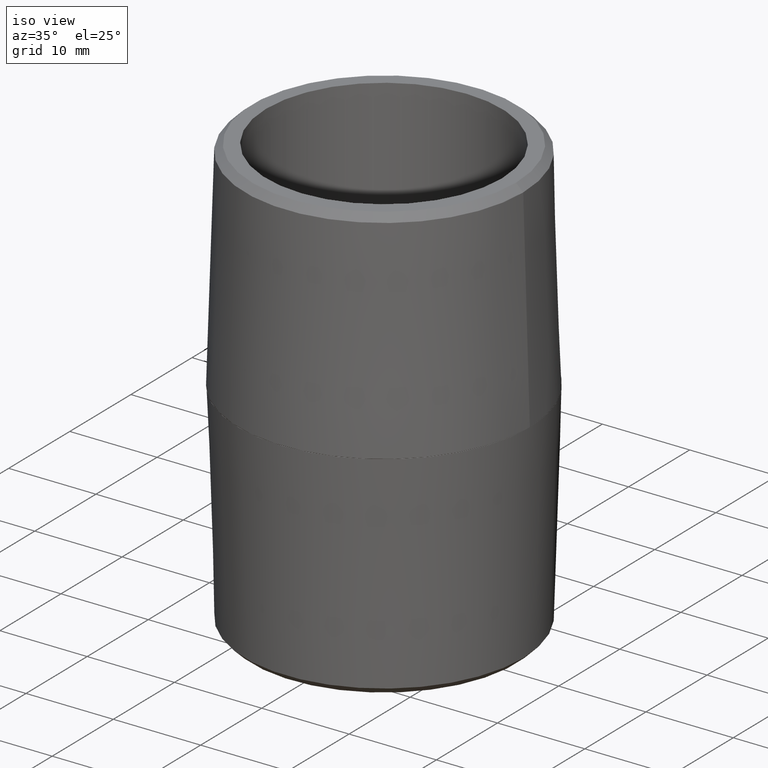
[diagram: clean part render]
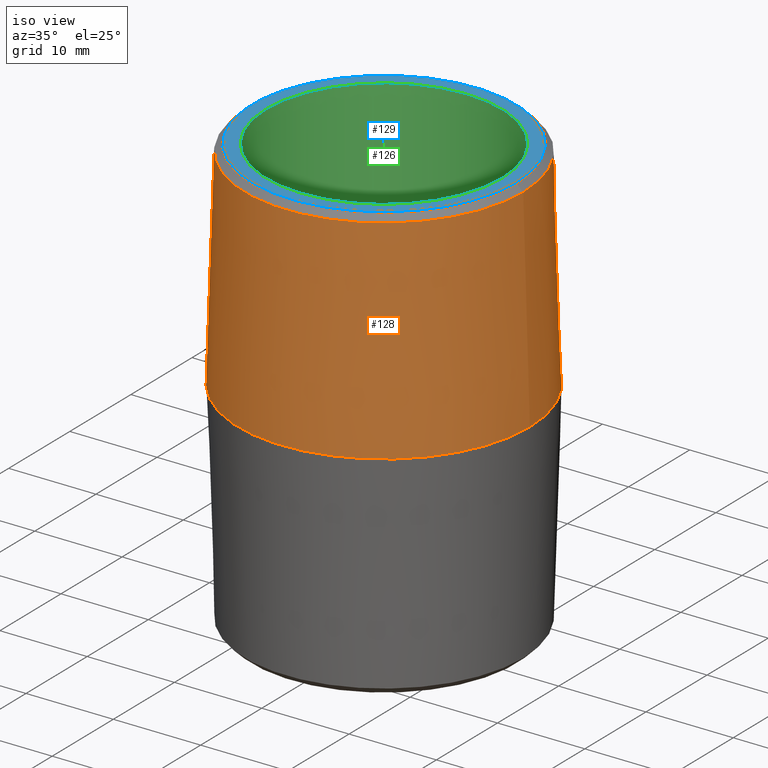
[diagram: same view with three faces highlighted in distinct colors, each labeled with its STEP entity id]
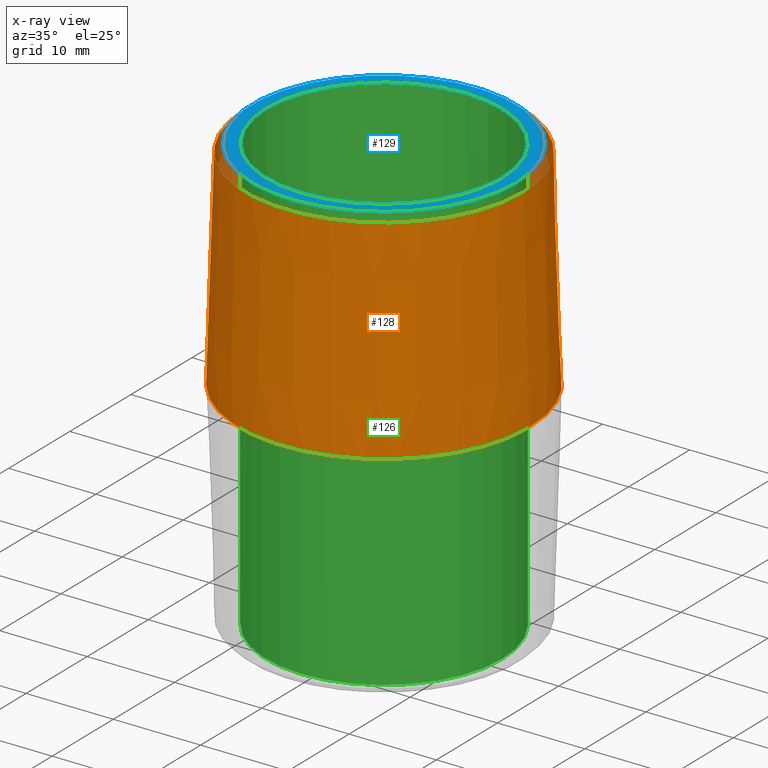
[diagram: x-ray of the same camera — body ghosted, the three highlighted faces saturated]
A machine part, iso view with three faces highlighted in distinct colors.
The next image is the same camera in x-ray (body ghosted, the three faces saturated) — at least one of them is partly hidden behind the body in this view.
Their STEP definitions:

[orange] entity #128 — the highlighted conical surface has half-angle 1.79 deg.
#19=CONICAL_SURFACE('',#160,0.6575,0.0312413936106985);
#24=FACE_OUTER_BOUND('',#32,.T.);
#32=EDGE_LOOP('',(#93,#94,#95,#96));
#42=LINE('',#228,#48);
#48=VECTOR('',#189,0.6575);
#54=CIRCLE('',#158,0.627865230054466);
#56=CIRCLE('',#161,0.6575);
#63=VERTEX_POINT('',#221);
#65=VERTEX_POINT('',#227);
#73=EDGE_CURVE('',#63,#63,#54,.T.);
#76=EDGE_CURVE('',#63,#65,#42,.T.);
#77=EDGE_CURVE('',#65,#65,#56,.T.);
#93=ORIENTED_EDGE('',*,*,#73,.F.);
#94=ORIENTED_EDGE('',*,*,#76,.T.);
#95=ORIENTED_EDGE('',*,*,#77,.F.);
#96=ORIENTED_EDGE('',*,*,#76,.F.);
#128=ADVANCED_FACE('',(#24),#19,.T.);
#158=AXIS2_PLACEMENT_3D('',#222,#182,#183);
#160=AXIS2_PLACEMENT_3D('',#226,#187,#188);
#161=AXIS2_PLACEMENT_3D('',#229,#190,#191);
#182=DIRECTION('center_axis',(0.,0.,1.));
#183=DIRECTION('ref_axis',(-1.,-6.12303176911189E-17,0.));
#187=DIRECTION('center_axis',(0.,0.,-1.));
#188=DIRECTION('ref_axis',(-1.,0.,0.));
#189=DIRECTION('',(0.0312363117968641,3.82534492591983E-18,-0.999512027354013));
#190=DIRECTION('center_axis',(0.,0.,-1.));
#191=DIRECTION('ref_axis',(-1.,0.,0.));
#221=CARTESIAN_POINT('',(0.627865230054466,1.5377755001377E-16,0.948765249145187));
#222=CARTESIAN_POINT('Origin',(0.,3.84443875034424E-17,0.948765249145187));
#226=CARTESIAN_POINT('Origin',(0.,0.,0.0005));
#227=CARTESIAN_POINT('',(0.6575,8.05205270439385E-17,0.0005));
#228=CARTESIAN_POINT('',(0.6575,8.05205270439385E-17,0.0005));
#229=CARTESIAN_POINT('Origin',(0.,0.,0.0005));

[blue] entity #129 — the highlighted planar face has unit normal (0, 0, -1).
#14=FACE_BOUND('',#34,.T.);
#16=PLANE('',#162);
#25=FACE_OUTER_BOUND('',#33,.T.);
#33=EDGE_LOOP('',(#97));
#34=EDGE_LOOP('',(#98));
#52=CIRCLE('',#155,0.5315);
#55=CIRCLE('',#159,0.595639095310814);
#61=VERTEX_POINT('',#215);
#64=VERTEX_POINT('',#223);
#70=EDGE_CURVE('',#61,#61,#52,.T.);
#75=EDGE_CURVE('',#64,#64,#55,.T.);
#97=ORIENTED_EDGE('',*,*,#75,.F.);
#98=ORIENTED_EDGE('',*,*,#70,.T.);
#129=ADVANCED_FACE('',(#25,#14),#16,.F.);
#155=AXIS2_PLACEMENT_3D('',#216,#175,#176);
#159=AXIS2_PLACEMENT_3D('',#225,#185,#186);
#162=AXIS2_PLACEMENT_3D('',#230,#192,#193);
#175=DIRECTION('center_axis',(0.,0.,-1.));
#176=DIRECTION('ref_axis',(-1.,0.,0.));
#185=DIRECTION('center_axis',(0.,0.,-1.));
#186=DIRECTION('ref_axis',(-1.,0.,0.));
#192=DIRECTION('center_axis',(0.,0.,-1.));
#193=DIRECTION('ref_axis',(-1.,0.,0.));
#215=CARTESIAN_POINT('',(0.5315,6.50899773746818E-17,0.98));
#216=CARTESIAN_POINT('Origin',(0.,0.,0.98));
#223=CARTESIAN_POINT('',(0.595639095310814,-7.29423420702636E-17,0.98));
#225=CARTESIAN_POINT('Origin',(0.,0.,0.98));
#230=CARTESIAN_POINT('Origin',(0.,0.,0.98));

[green] entity #126 — the highlighted cylindrical surface (bore or boss wall) has radius 13.5001 mm, axis along (0, 0, -1).
#22=FACE_OUTER_BOUND('',#30,.T.);
#30=EDGE_LOOP('',(#85,#86,#87,#88));
#40=LINE('',#218,#46);
#46=VECTOR('',#177,0.5315);
#52=CIRCLE('',#155,0.5315);
#53=CIRCLE('',#156,0.5315);
#61=VERTEX_POINT('',#215);
#62=VERTEX_POINT('',#217);
#70=EDGE_CURVE('',#61,#61,#52,.T.);
#71=EDGE_CURVE('',#61,#62,#40,.T.);
#72=EDGE_CURVE('',#62,#62,#53,.T.);
#85=ORIENTED_EDGE('',*,*,#70,.F.);
#86=ORIENTED_EDGE('',*,*,#71,.T.);
#87=ORIENTED_EDGE('',*,*,#72,.F.);
#88=ORIENTED_EDGE('',*,*,#71,.F.);
#115=CYLINDRICAL_SURFACE('',#154,0.5315);
#126=ADVANCED_FACE('',(#22),#115,.F.);
#154=AXIS2_PLACEMENT_3D('',#214,#173,#174);
#155=AXIS2_PLACEMENT_3D('',#216,#175,#176);
#156=AXIS2_PLACEMENT_3D('',#219,#178,#179);
#173=DIRECTION('center_axis',(0.,0.,-1.));
#174=DIRECTION('ref_axis',(-1.,0.,0.));
#175=DIRECTION('center_axis',(0.,0.,-1.));
#176=DIRECTION('ref_axis',(-1.,0.,0.));
#177=DIRECTION('',(0.,0.,-1.));
#178=DIRECTION('center_axis',(0.,0.,1.));
#179=DIRECTION('ref_axis',(-1.,0.,0.));
#214=CARTESIAN_POINT('Origin',(0.,0.,0.98));
#215=CARTESIAN_POINT('',(0.5315,6.50899773746818E-17,0.98));
#216=CARTESIAN_POINT('Origin',(0.,0.,0.98));
#217=CARTESIAN_POINT('',(0.5315,6.50878277056593E-17,-0.98));
#218=CARTESIAN_POINT('',(0.5315,-6.50899773746818E-17,0.98));
#219=CARTESIAN_POINT('Origin',(0.,0.,-0.98));